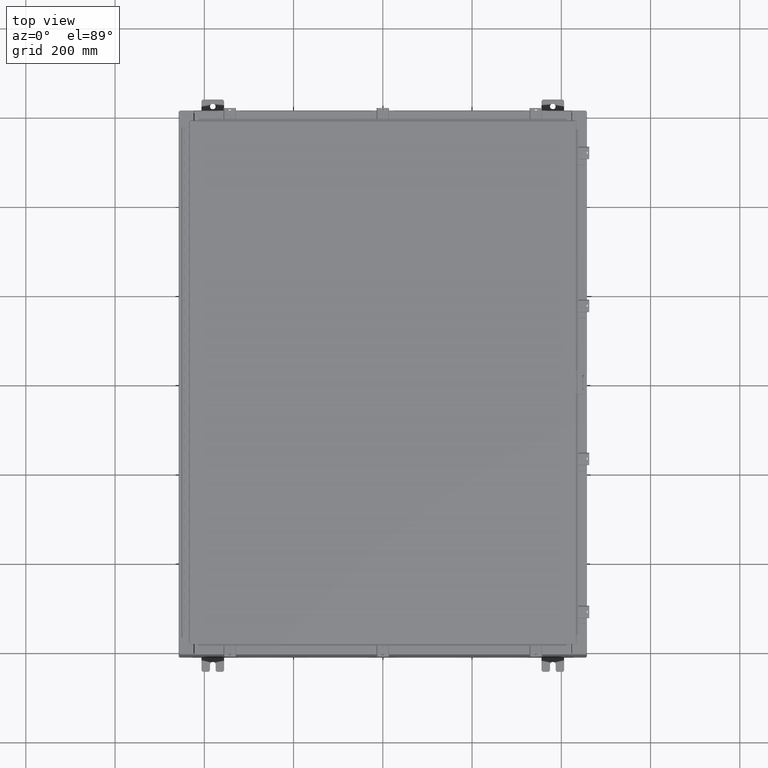
[diagram: clean part render]
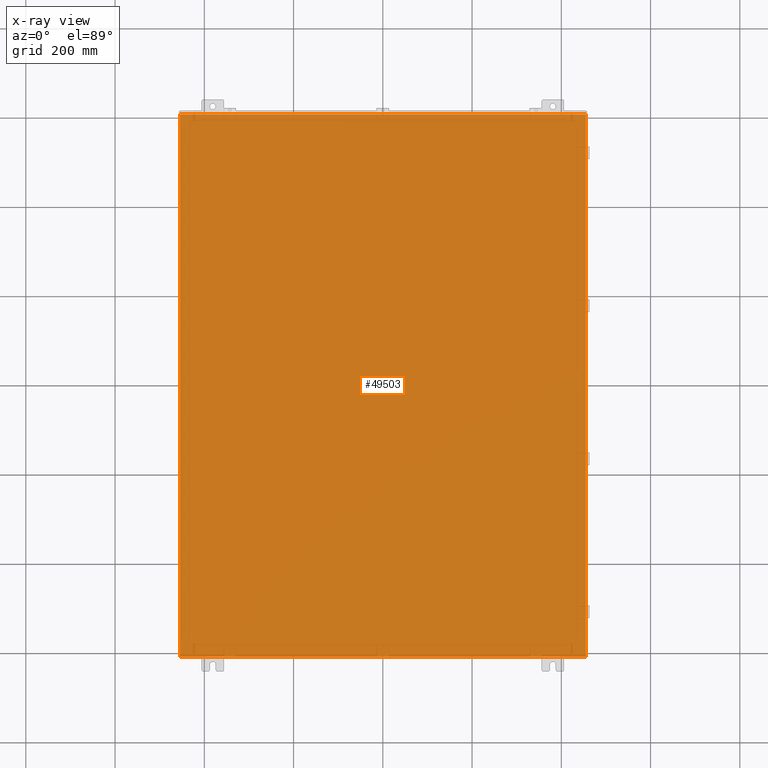
[diagram: x-ray — body ghosted, one internal face saturated and labeled with its STEP entity id]
A machine part, top view, then the same camera in x-ray: the body is ghosted and one INTERNAL B-rep face — a face not visible from any outside direction — is saturated and labeled: STEP entity #49503.
In plain terms, the highlighted planar face has unit normal (0, 0, -1).
Its self-contained STEP definition (entity closure, byte-faithful):
#1084 = LINE ( 'NONE', #40929, #33013 ) ;
#1771 = VERTEX_POINT ( 'NONE', #25091 ) ;
#4154 = CARTESIAN_POINT ( 'NONE',  ( 0.0000000000000000000, 0.0000000000000000000, 0.0000000000000000000 ) ) ;
#7751 = LINE ( 'NONE', #9872, #50725 ) ;
#8344 = DIRECTION ( 'NONE',  ( 0.0000000000000000000, 0.0000000000000000000, -1.000000000000000000 ) ) ;
#9558 = DIRECTION ( 'NONE',  ( 1.000000000000000000, 1.214154663850783700E-016, 0.0000000000000000000 ) ) ;
#9872 = CARTESIAN_POINT ( 'NONE',  ( -18.00000000000000400, -23.92530000000000400, 0.0000000000000000000 ) ) ;
#11784 = CARTESIAN_POINT ( 'NONE',  ( -17.91230000000000500, -23.92529999999998600, 4.481938114605432000E-017 ) ) ;
#11881 = CARTESIAN_POINT ( 'NONE',  ( -17.91230000000000500, -23.92529999999998900, 4.481938114605432000E-017 ) ) ;
#13449 = AXIS2_PLACEMENT_3D ( 'NONE', #4154, #8344, #37472 ) ;
#13739 = VERTEX_POINT ( 'NONE', #15944 ) ;
#15327 = EDGE_CURVE ( 'NONE', #38394, #1771, #7751, .T. ) ;
#15944 = CARTESIAN_POINT ( 'NONE',  ( 17.91229999999999500, 23.92529999999998600, 3.103208580302999200E-015 ) ) ;
#16994 = FACE_OUTER_BOUND ( 'NONE', #24643, .T. ) ;
#18298 = LINE ( 'NONE', #24256, #50144 ) ;
#18753 = VECTOR ( 'NONE', #49291, 39.37007874015748100 ) ;
#21827 = ORIENTED_EDGE ( 'NONE', *, *, #43765, .F. ) ;
#24256 = CARTESIAN_POINT ( 'NONE',  ( 17.91229999999999500, 23.92529999999998900, 3.103208580302999200E-015 ) ) ;
#24643 = EDGE_LOOP ( 'NONE', ( #21827, #34223, #44179, #39353 ) ) ;
#25091 = CARTESIAN_POINT ( 'NONE',  ( 17.91229999999999500, -23.92529999999998900, -8.238229105893793900E-016 ) ) ;
#29129 = PLANE ( 'NONE',  #13449 ) ;
#29831 = LINE ( 'NONE', #11881, #18753 ) ;
#33013 = VECTOR ( 'NONE', #36927, 39.37007874015748100 ) ;
#34223 = ORIENTED_EDGE ( 'NONE', *, *, #15327, .T. ) ;
#36927 = DIRECTION ( 'NONE',  ( -1.000000000000000000, -0.0000000000000000000, -0.0000000000000000000 ) ) ;
#37386 = VERTEX_POINT ( 'NONE', #37881 ) ;
#37472 = DIRECTION ( 'NONE',  ( -1.000000000000000000, 0.0000000000000000000, -0.0000000000000000000 ) ) ;
#37881 = CARTESIAN_POINT ( 'NONE',  ( -17.91230000000000500, 23.92529999999998900, 4.481938114605432000E-017 ) ) ;
#38394 = VERTEX_POINT ( 'NONE', #11784 ) ;
#39353 = ORIENTED_EDGE ( 'NONE', *, *, #42099, .T. ) ;
#40375 = EDGE_CURVE ( 'NONE', #13739, #1771, #18298, .T. ) ;
#40929 = CARTESIAN_POINT ( 'NONE',  ( -18.00000000000000400, 23.92530000000000000, 0.0000000000000000000 ) ) ;
#42099 = EDGE_CURVE ( 'NONE', #13739, #37386, #1084, .T. ) ;
#43765 = EDGE_CURVE ( 'NONE', #38394, #37386, #29831, .T. ) ;
#44179 = ORIENTED_EDGE ( 'NONE', *, *, #40375, .F. ) ;
#44905 = DIRECTION ( 'NONE',  ( -0.0000000000000000000, -1.000000000000000000, -8.208677865577646300E-017 ) ) ;
#49291 = DIRECTION ( 'NONE',  ( -0.0000000000000000000, 1.000000000000000000, -0.0000000000000000000 ) ) ;
#49503 = ADVANCED_FACE ( 'NONE', ( #16994 ), #29129, .F. ) ;
#50144 = VECTOR ( 'NONE', #44905, 39.37007874015748100 ) ;
#50725 = VECTOR ( 'NONE', #9558, 39.37007874015748100 ) ;